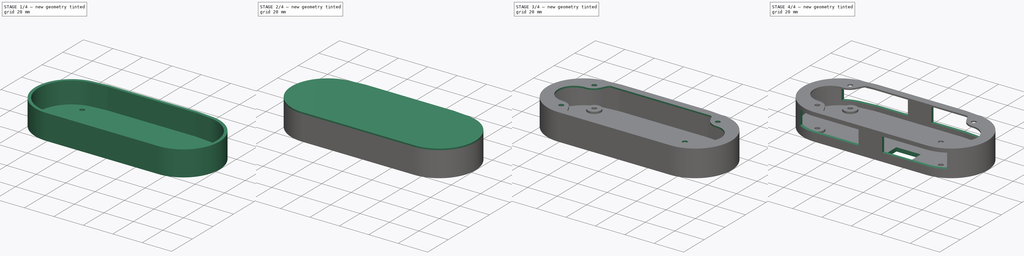
[diagram: build sequence overview — one tinted view per stage of 4, left to right]
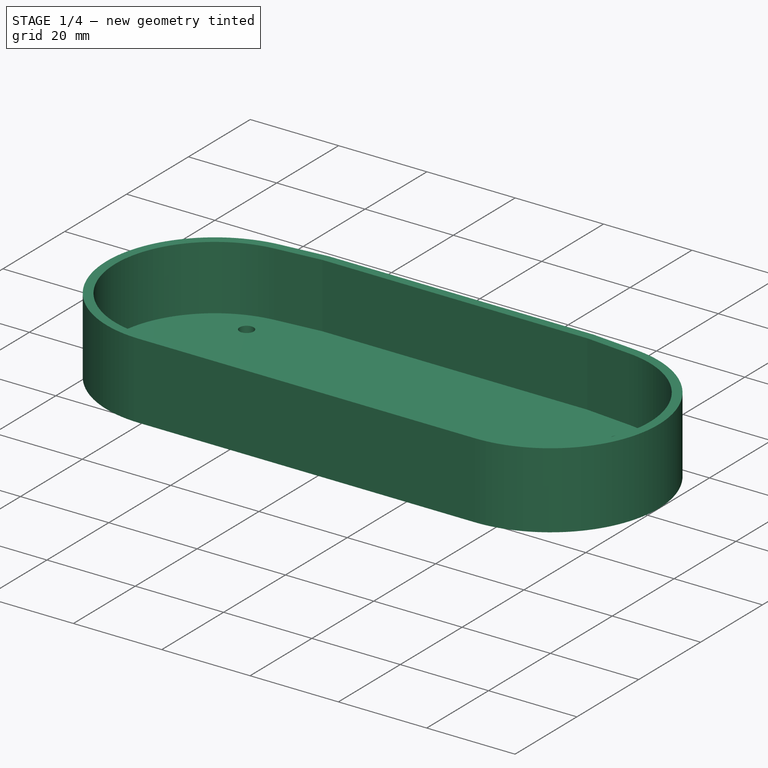
[diagram: stage 1 of 4 — iso view after this stage's code; geometry added in this stage tinted green]
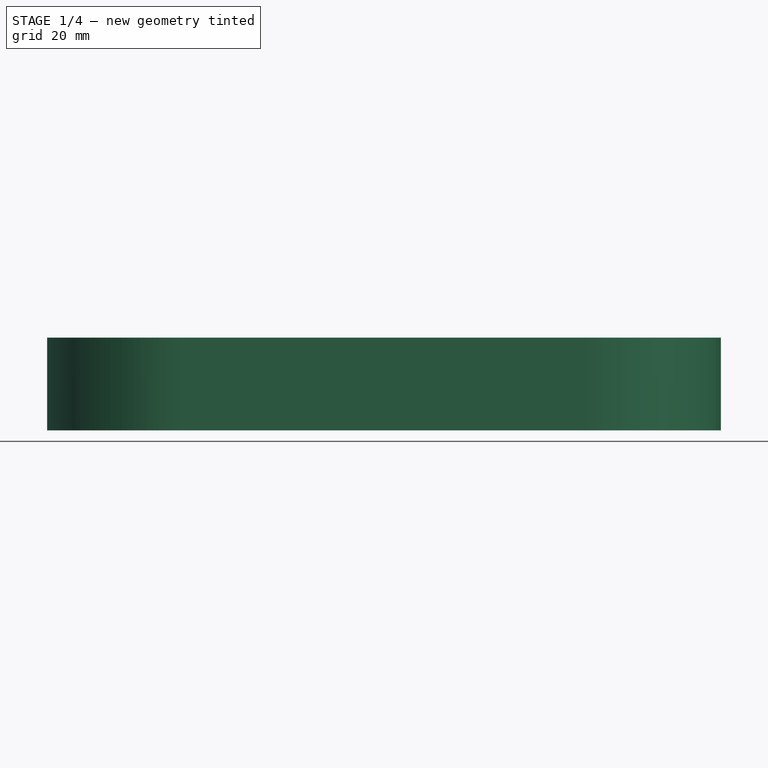
[diagram: stage 1 of 4 — front view after this stage's code; geometry added in this stage tinted green]
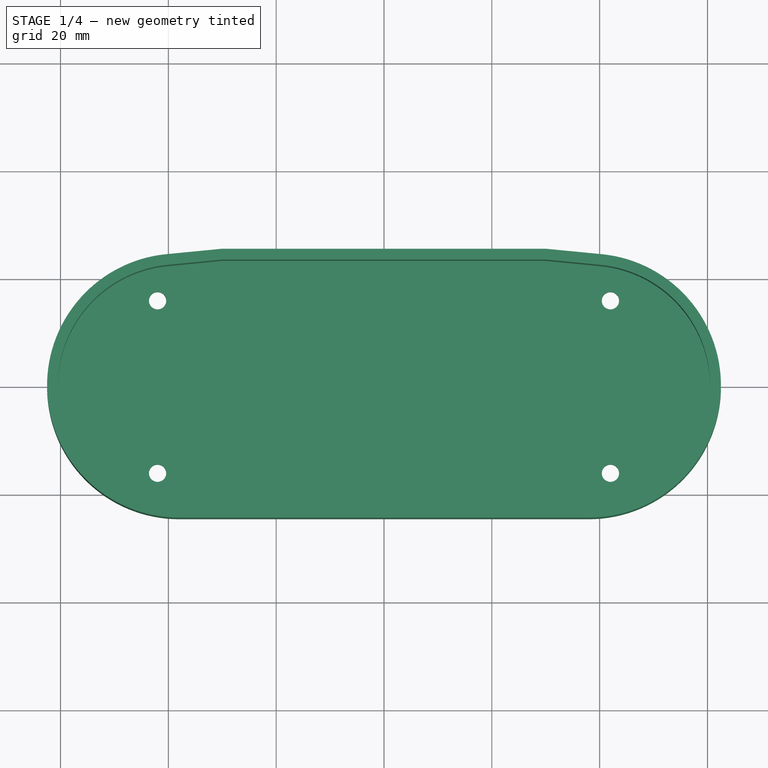
[diagram: stage 1 of 4 — top view after this stage's code; geometry added in this stage tinted green]
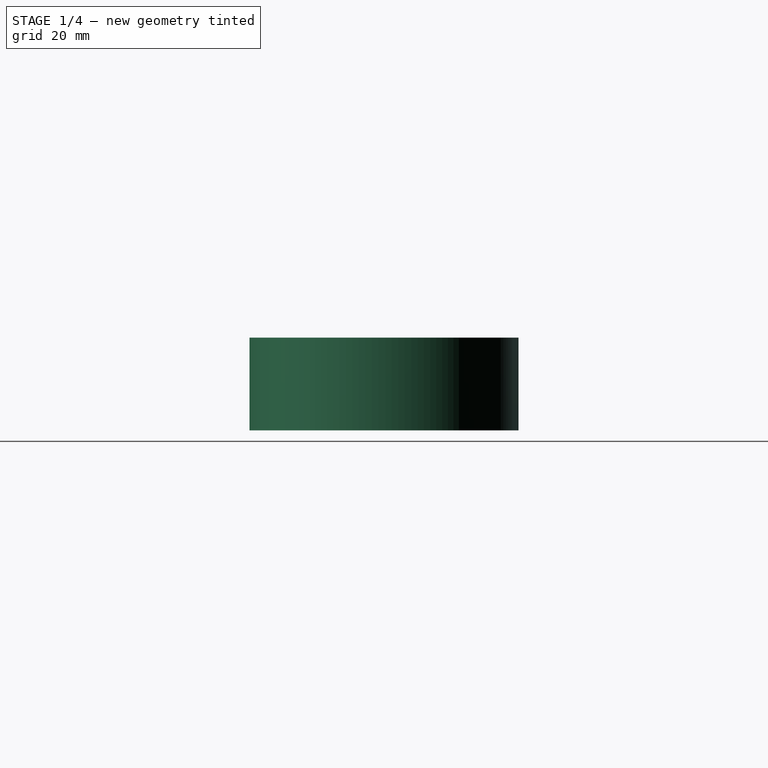
[diagram: stage 1 of 4 — right view after this stage's code; geometry added in this stage tinted green]
FCSTD DOCUMENT  (FreeCAD 1.0R38641 +468 (Git))
Label: case
License: All rights reserved
LicenseURL: https://en.wikipedia.org/wiki/All_rights_reserved
objects: Sketcher::SketchObject×9, PartDesign::Pocket×5, PartDesign::Pad×4, PartDesign::Mirrored×2, PartDesign::MultiTransform×1, PartDesign::Body×1
note: 52 computed .brp shape members not serialized (recipe doc carries the construction recipe); baked Part::Feature solids carry a one-line shape summary decoded from their .brp

FEATURE [Sketcher::SketchObject] Sketch
  ArcFitTolerance = 0
  AttachmentSupport = -> [XY_Plane]
  FullyConstrained = true
  MakeInternals = false
  MapMode = 5
  sketch-geometry (22):
    g0: LineSegment StartX=-30 StartY=23.3926 StartZ=0 EndX=30 EndY=23.3926 EndZ=0
    g1: LineSegment StartX=-38 StartY=-22.5 StartZ=0 EndX=38 EndY=-22.5 EndZ=0
    g2: ArcOfCircle CenterX=-38 CenterY=0 CenterZ=0 NormalX=0 NormalY=0 NormalZ=1 AngleXU=0 Radius=22.5 StartAngle=1.66856 EndAngle=4.71239
    g3: ArcOfCircle CenterX=38 CenterY=0 CenterZ=0 NormalX=0 NormalY=0 NormalZ=1 AngleXU=0 Radius=22.5 StartAngle=4.71239 EndAngle=7.75622
    g4: LineSegment [constr] StartX=-38 StartY=0 StartZ=0 EndX=38 EndY=0 EndZ=0
    g5: LineSegment [constr] StartX=30 StartY=22.3926 StartZ=0 EndX=30 EndY=23.3926 EndZ=0
    g6: LineSegment [constr] StartX=-30 StartY=22.3926 StartZ=0 EndX=-30 EndY=23.3926 EndZ=0
    g7: LineSegment StartX=-40.1962 StartY=22.3926 StartZ=0 EndX=-30 EndY=23.3926 EndZ=0
    g8: LineSegment StartX=30 StartY=23.3926 StartZ=0 EndX=40.1962 EndY=22.3926 EndZ=0
    g9: LineSegment [constr] StartX=-40.1962 StartY=22.3926 StartZ=0 EndX=40.1962 EndY=22.3926 EndZ=0
    g10: LineSegment [constr] StartX=-38 StartY=-22.5 StartZ=0 EndX=-38 EndY=0 EndZ=0
    g11: LineSegment [constr] StartX=38 StartY=0 StartZ=0 EndX=38 EndY=-22.5 EndZ=0
    g12: LineSegment StartX=-38 StartY=-24.5 StartZ=0 EndX=38 EndY=-24.5 EndZ=0
    g13: ArcOfCircle CenterX=38 CenterY=0 CenterZ=0 NormalX=0 NormalY=0 NormalZ=1 AngleXU=0 Radius=24.5 StartAngle=4.71239 EndAngle=7.75713
    g14: ArcOfCircle CenterX=-38 CenterY=0 CenterZ=0 NormalX=0 NormalY=0 NormalZ=1 AngleXU=0 Radius=24.5 StartAngle=1.66764 EndAngle=4.71239
    g15: LineSegment StartX=-30 StartY=25.3926 StartZ=0 EndX=30 EndY=25.3926 EndZ=0
    g16: LineSegment StartX=-40.3691 StartY=24.3852 StartZ=0 EndX=-30 EndY=25.3926 EndZ=0
    g17: LineSegment StartX=30 StartY=25.3926 StartZ=0 EndX=40.3691 EndY=24.3852 EndZ=0
    g18: LineSegment [constr] StartX=38 StartY=-22.5 StartZ=0 EndX=38 EndY=-24.5 EndZ=0
    g19: LineSegment [constr] StartX=-38 StartY=-22.5 StartZ=0 EndX=-38 EndY=-24.5 EndZ=0
    g20: LineSegment [constr] StartX=-30 StartY=23.3926 StartZ=0 EndX=-30 EndY=25.3926 EndZ=0
    g21: LineSegment [constr] StartX=30 StartY=23.3926 StartZ=0 EndX=30 EndY=25.3926 EndZ=0
  constraints (56):
    c: Horizontal(g0)
    c: Horizontal(g1)
    c: PointOnObject(g2,g-1)
    c: Coincident(g2,g1)
    c: PointOnObject(g3,g-1)
    c: Coincident(g3,g1)
    c: Coincident(g4,g2)
    c: Coincident(g4,g3)
    c: Coincident(g5,g0)
    c: Coincident(g6,g0)
    c: Vertical(g6)
    c: Vertical(g5)
    c: Tangent(g8,g3) = 1.5708
    c: Tangent(g7,g2) = 1.5708
    c: Coincident(g9,g2)
    c: Coincident(g9,g3)
    c: Horizontal(g9)
    c: DistanceX(g-1,g3) = 38
    c: DistanceX(g4,g4) = 76
    c: Coincident(g10,g1)
    c: Coincident(g10,g2)
    c: Coincident(g11,g3)
    c: Coincident(g11,g1)
    c: Vertical(g11)
    c: Vertical(g10)
    c: Radius(g3) = 22.5
    c: Coincident(g7,g0)
    c: Coincident(g8,g0)
    c: DistanceX(g-1,g5) = 30
    c: PointOnObject(g5,g9)
    c: PointOnObject(g6,g9)
    c: DistanceY(g5,g5) = 1
    c: Horizontal(g12)
    c: Coincident(g13,g3)
    c: Coincident(g13,g12)
    c: Coincident(g14,g2)
    c: Coincident(g14,g12)
    c: Horizontal(g15)
    c: Coincident(g16,g15)
    c: Coincident(g17,g15)
    c: Coincident(g18,g1)
    c: Coincident(g18,g12)
    c: Coincident(g19,g1)
    c: Coincident(g19,g12)
    c: Vertical(g19)
    c: Vertical(g18)
    c: DistanceY(g18,g18) = 2
    c: Tangent(g17,g13) = 1.5708
    c: Tangent(g16,g14) = 1.5708
    c: Coincident(g20,g0)
    c: Coincident(g20,g15)
    c: Coincident(g21,g0)
    c: Coincident(g21,g15)
    c: Vertical(g20)
    c: Vertical(g21)
    c: DistanceY(g20,g20) = 2
FEATURE [PartDesign::Pad] Pad
  Direction = (0,0,1)
  Length = 6.6
  Length2 = 8
  Profile = -> Sketch
  ReferenceAxis = -> Sketch [N_Axis]
  Suppressed = false
  Type = 4
FEATURE [Sketcher::SketchObject] Sketch001
  ArcFitTolerance = 0
  AttachmentSupport = -> [Pad]
  ExternalGeometry = -> [Pad]
  FullyConstrained = true
  MakeInternals = false
  MapMode = 5
  Placement = pos=(0,0,-8) rot=(1,0,0;3.14159rad)
  sketch-geometry (16):
    g0: LineSegment [constr] StartX=38 StartY=24.5 StartZ=0 EndX=38 EndY=0 EndZ=0
    g1: LineSegment [constr] StartX=-38 StartY=24.5 StartZ=0 EndX=-38 EndY=0 EndZ=0
    g2: ArcOfCircle CenterX=38 CenterY=0 CenterZ=0 NormalX=0 NormalY=0 NormalZ=1 AngleXU=0 Radius=24.5 StartAngle=4.80924 EndAngle=7.85398
    g3: ArcOfCircle CenterX=-38 CenterY=0 CenterZ=0 NormalX=0 NormalY=0 NormalZ=1 AngleXU=0 Radius=24.5 StartAngle=1.5708 EndAngle=4.61554
    g4: LineSegment StartX=-40.3691 StartY=-24.3852 StartZ=0 EndX=-30 EndY=-25.3926 EndZ=0
    g5: LineSegment StartX=30 StartY=-25.3926 StartZ=0 EndX=40.3691 EndY=-24.3852 EndZ=0
    g6: LineSegment StartX=-38 StartY=24.5 StartZ=0 EndX=38 EndY=24.5 EndZ=0
    g7: LineSegment StartX=-30 StartY=-25.3926 StartZ=0 EndX=30 EndY=-25.3926 EndZ=0
    g8: LineSegment [constr] StartX=-42 StartY=16 StartZ=0 EndX=42 EndY=16 EndZ=0
    g9: LineSegment [constr] StartX=42 StartY=16 StartZ=0 EndX=42 EndY=-16 EndZ=0
    g10: LineSegment [constr] StartX=42 StartY=-16 StartZ=0 EndX=-42 EndY=-16 EndZ=0
    g11: LineSegment [constr] StartX=-42 StartY=-16 StartZ=0 EndX=-42 EndY=16 EndZ=0
    g12: Circle CenterX=-42 CenterY=16 CenterZ=0 NormalX=0 NormalY=0 NormalZ=1 AngleXU=0 Radius=1.6
    g13: Circle CenterX=-42 CenterY=-16 CenterZ=0 NormalX=0 NormalY=0 NormalZ=1 AngleXU=0 Radius=1.6
    g14: Circle CenterX=42 CenterY=-16 CenterZ=0 NormalX=0 NormalY=0 NormalZ=1 AngleXU=0 Radius=1.6
    g15: Circle CenterX=42 CenterY=16 CenterZ=0 NormalX=0 NormalY=0 NormalZ=1 AngleXU=0 Radius=1.6
  constraints (38):
    c: Coincident(g0,g-3)
    c: PointOnObject(g0,g-1)
    c: Vertical(g0)
    c: Coincident(g1,g-3)
    c: PointOnObject(g1,g-1)
    c: Vertical(g1)
    c: Coincident(g2,g0)
    c: Coincident(g2,g0)
    c: Coincident(g3,g1)
    c: Coincident(g3,g1)
    c: Coincident(g4,g-4)
    c: Coincident(g5,g-4)
    c: Tangent(g5,g2) = -1.5708
    c: Tangent(g4,g3) = -1.5708
    c: Coincident(g6,g3)
    c: Coincident(g6,g2)
    c: Coincident(g7,g4)
    c: Coincident(g7,g5)
    c: Coincident(g8,g9)
    c: Coincident(g9,g10)
    c: Coincident(g10,g11)
    c: Coincident(g11,g8)
    c: Horizontal(g8)
    c: Horizontal(g10)
    c: Vertical(g9)
    c: Vertical(g11)
    c: DistanceX(g-1,g9) = 42
    c: DistanceX(g10,g-1) = 42
    c: DistanceY(g-1,g8) = 16
    c: DistanceY(g9,g-1) = 16
    c: Coincident(g12,g8)
    c: Coincident(g13,g10)
    c: Coincident(g14,g9)
    c: Coincident(g15,g8)
    c: Equal(g12,g13)
    c: Equal(g13,g14)
    c: Equal(g14,g15)
    c: Diameter(g12) = 3.2
FEATURE [PartDesign::Pad] Pad001
  BaseFeature = -> Pad
  Direction = (0,0,-1)
  Length = 2.6
  Length2 = 10
  Profile = -> Sketch001
  ReferenceAxis = -> Sketch001 [N_Axis]
  Suppressed = false
  Type = 0
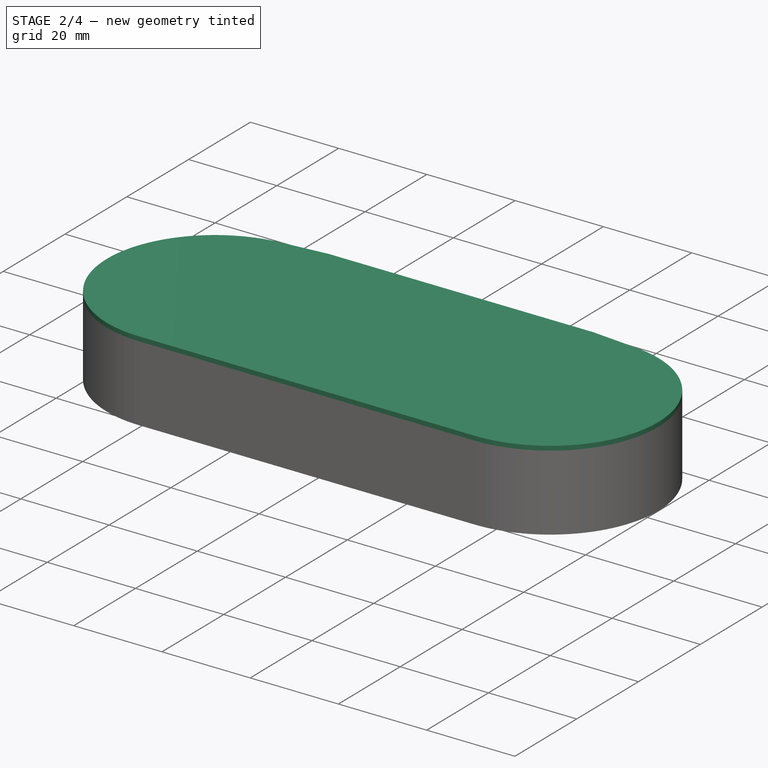
[diagram: stage 2 of 4 — iso view after this stage's code; geometry added in this stage tinted green]
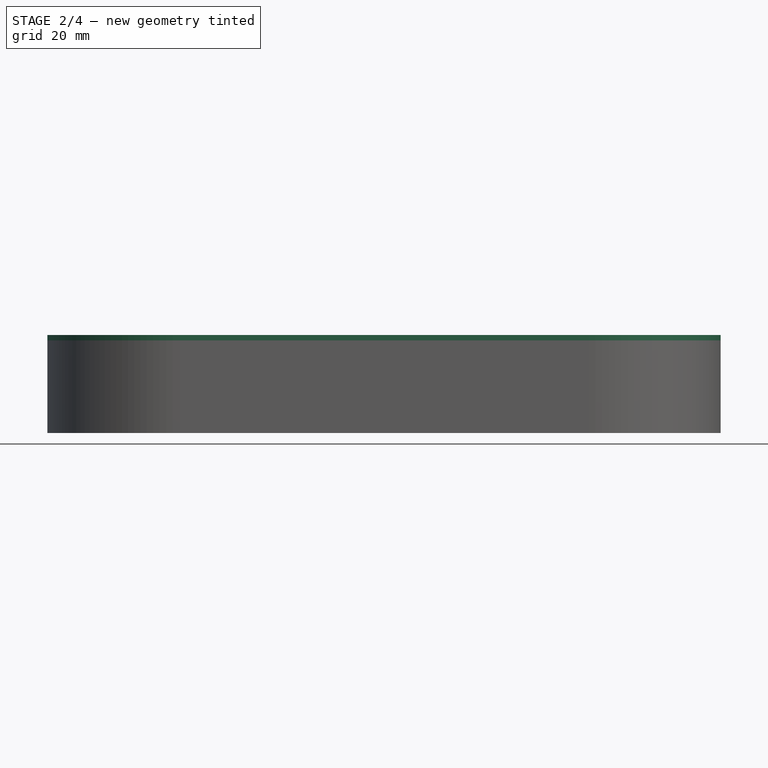
[diagram: stage 2 of 4 — front view after this stage's code; geometry added in this stage tinted green]
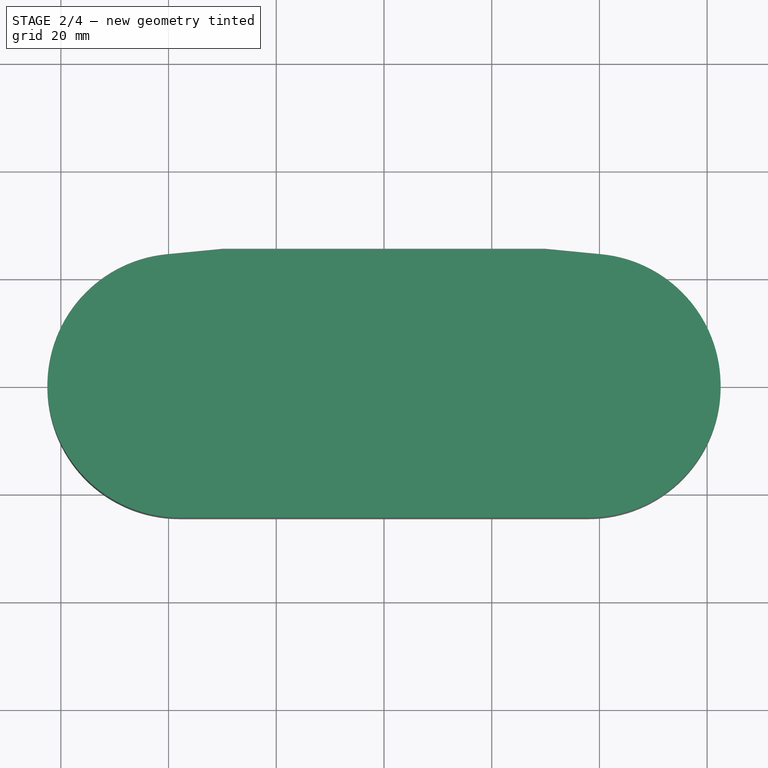
[diagram: stage 2 of 4 — top view after this stage's code; geometry added in this stage tinted green]
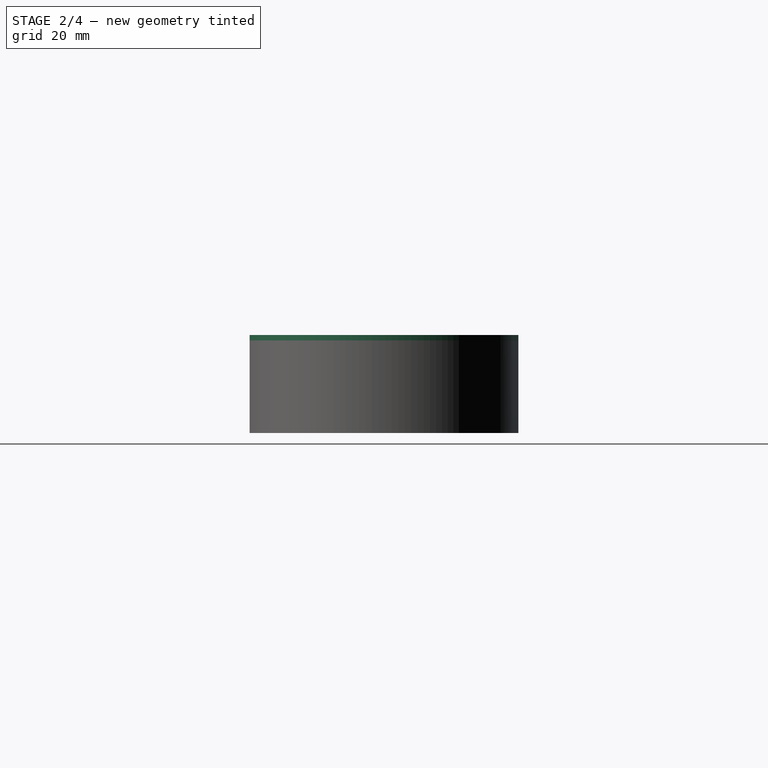
[diagram: stage 2 of 4 — right view after this stage's code; geometry added in this stage tinted green]
FEATURE [Sketcher::SketchObject] Sketch002
  ArcFitTolerance = 0
  AttachmentSupport = -> [Pad001]
  ExternalGeometry = -> [Pad001]
  FullyConstrained = true
  MakeInternals = false
  MapMode = 5
  Placement = pos=(0,0,-8) rot=(0,0,1;0rad)
  sketch-geometry (8):
    g0: Circle CenterX=-42 CenterY=16 CenterZ=0 NormalX=0 NormalY=0 NormalZ=1 AngleXU=0 Radius=4.5
    g1: Circle CenterX=-42 CenterY=-16 CenterZ=0 NormalX=0 NormalY=0 NormalZ=1 AngleXU=0 Radius=4.5
    g2: Circle CenterX=42 CenterY=16 CenterZ=0 NormalX=0 NormalY=0 NormalZ=1 AngleXU=0 Radius=4.5
    g3: Circle CenterX=42 CenterY=-16 CenterZ=0 NormalX=0 NormalY=0 NormalZ=1 AngleXU=0 Radius=4.5
    g4: Circle CenterX=-42 CenterY=16 CenterZ=0 NormalX=0 NormalY=0 NormalZ=1 AngleXU=0 Radius=1.6
    g5: Circle CenterX=-42 CenterY=-16 CenterZ=0 NormalX=0 NormalY=0 NormalZ=1 AngleXU=0 Radius=1.6
    g6: Circle CenterX=42 CenterY=16 CenterZ=0 NormalX=0 NormalY=0 NormalZ=1 AngleXU=0 Radius=1.6
    g7: Circle CenterX=42 CenterY=-16 CenterZ=0 NormalX=0 NormalY=0 NormalZ=1 AngleXU=0 Radius=1.6
  constraints (16):
    c: Coincident(g0,g-3)
    c: Coincident(g1,g-4)
    c: Coincident(g2,g-5)
    c: Coincident(g3,g-6)
    c: Diameter(g0) = 9
    c: Equal(g0,g2)
    c: Equal(g2,g3)
    c: Equal(g3,g1)
    c: Coincident(g4,g0)
    c: Coincident(g5,g1)
    c: Coincident(g6,g2)
    c: Coincident(g7,g3)
    c: Diameter(g4) = 3.2
    c: Equal(g4,g5)
    c: Equal(g5,g6)
    c: Equal(g6,g7)
FEATURE [PartDesign::Pad] Pad002
  BaseFeature = -> Pad001
  Direction = (0,0,1)
  Length = 1.4
  Length2 = 10
  Profile = -> Sketch002
  ReferenceAxis = -> Sketch002 [N_Axis]
  Suppressed = false
  Type = 0
FEATURE [Sketcher::SketchObject] Sketch003
  ArcFitTolerance = 0
  AttachmentSupport = -> [Pad002]
  ExternalGeometry = -> [Pad002]
  FullyConstrained = true
  MakeInternals = false
  MapMode = 5
  Placement = pos=(0,0,-10.6) rot=(1,0,0;3.14159rad)
  sketch-geometry (4):
    g0: Circle CenterX=-42 CenterY=16 CenterZ=0 NormalX=0 NormalY=0 NormalZ=1 AngleXU=0 Radius=3.5
    g1: Circle CenterX=-42 CenterY=-16 CenterZ=0 NormalX=0 NormalY=0 NormalZ=1 AngleXU=0 Radius=3.5
    g2: Circle CenterX=42 CenterY=-16 CenterZ=0 NormalX=0 NormalY=0 NormalZ=1 AngleXU=0 Radius=3.5
    g3: Circle CenterX=42 CenterY=16 CenterZ=0 NormalX=0 NormalY=0 NormalZ=1 AngleXU=0 Radius=3.5
  constraints (8):
    c: Coincident(g0,g-3)
    c: Coincident(g1,g-6)
    c: Coincident(g2,g-5)
    c: Coincident(g3,g-4)
    c: Diameter(g0) = 7
    c: Equal(g0,g1)
    c: Equal(g1,g3)
    c: Equal(g3,g2)
FEATURE [PartDesign::Pocket] Pocket
  BaseFeature = -> Pad002
  Direction = (0,0,1)
  Length = 3
  Length2 = 5
  Profile = -> Sketch003
  ReferenceAxis = -> Sketch003 [N_Axis]
  Suppressed = false
  Type = 0
FEATURE [Sketcher::SketchObject] Sketch004
  ArcFitTolerance = 0
  AttachmentSupport = -> [Pocket]
  ExternalGeometry = -> [Pocket]
  FullyConstrained = true
  MakeInternals = false
  MapMode = 5
  Placement = pos=(0,0,6.6) rot=(0,0,1;0rad)
  sketch-geometry (8):
    g0: LineSegment [constr] StartX=-38 StartY=-24.5 StartZ=0 EndX=-38 EndY=0 EndZ=0
    g1: LineSegment [constr] StartX=38 StartY=-24.5 StartZ=0 EndX=38 EndY=0 EndZ=0
    g2: LineSegment StartX=-38 StartY=-24.5 StartZ=0 EndX=38 EndY=-24.5 EndZ=0
    g3: LineSegment StartX=-30 StartY=25.3926 StartZ=0 EndX=30 EndY=25.3926 EndZ=0
    g4: ArcOfCircle CenterX=-38 CenterY=0 CenterZ=0 NormalX=0 NormalY=0 NormalZ=1 AngleXU=0 Radius=24.5 StartAngle=1.66764 EndAngle=4.71239
    g5: ArcOfCircle CenterX=38 CenterY=0 CenterZ=0 NormalX=0 NormalY=0 NormalZ=1 AngleXU=0 Radius=24.5 StartAngle=4.71239 EndAngle=7.75713
    g6: LineSegment StartX=-30 StartY=25.3926 StartZ=0 EndX=-40.3691 EndY=24.3852 EndZ=0
    g7: LineSegment StartX=30 StartY=25.3926 StartZ=0 EndX=40.3691 EndY=24.3852 EndZ=0
  constraints (18):
    c: Coincident(g0,g-4)
    c: PointOnObject(g0,g-1)
    c: Vertical(g0)
    c: Coincident(g1,g-4)
    c: PointOnObject(g1,g-1)
    c: Vertical(g1)
    c: Coincident(g2,g0)
    c: Coincident(g2,g1)
    c: Coincident(g3,g-3)
    c: Coincident(g3,g-3)
    c: Coincident(g4,g0)
    c: Coincident(g4,g2)
    c: Coincident(g5,g1)
    c: Coincident(g5,g2)
    c: Coincident(g6,g3)
    c: Coincident(g7,g3)
    c: Tangent(g7,g5) = 1.5708
    c: Tangent(g6,g4) = -1.5708
FEATURE [PartDesign::Pad] Pad003
  BaseFeature = -> Pocket
  Direction = (0,0,1)
  Length = 1
  Length2 = 10
  Profile = -> Sketch004
  ReferenceAxis = -> Sketch004 [N_Axis]
  Suppressed = false
  Type = 0
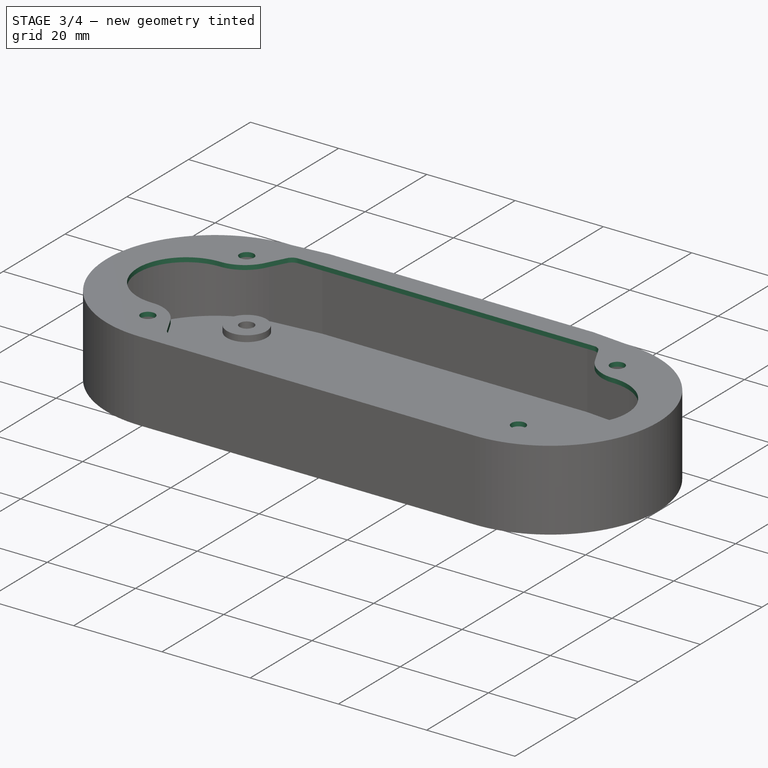
[diagram: stage 3 of 4 — iso view after this stage's code; geometry added in this stage tinted green]
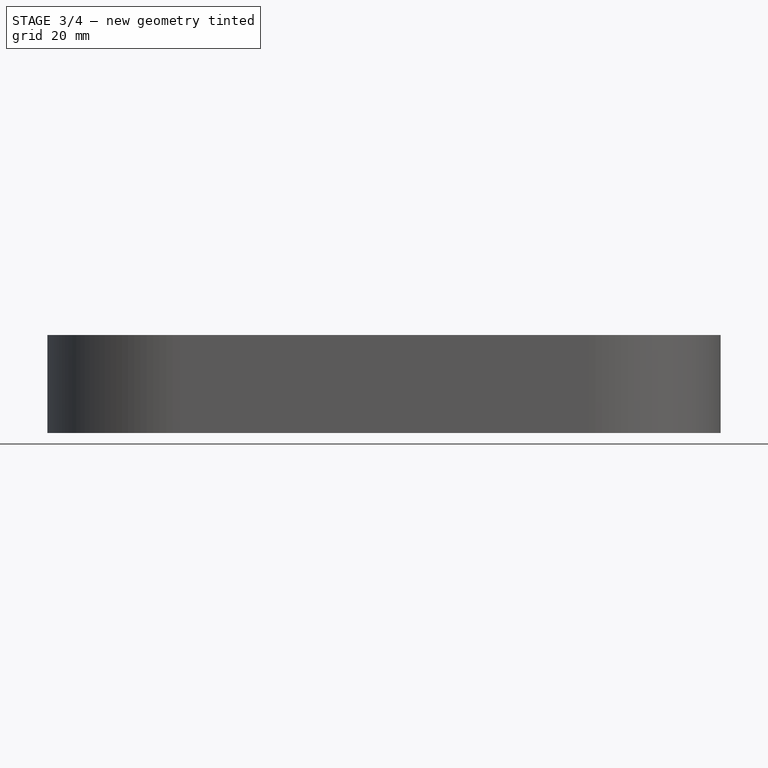
[diagram: stage 3 of 4 — front view after this stage's code; geometry added in this stage tinted green]
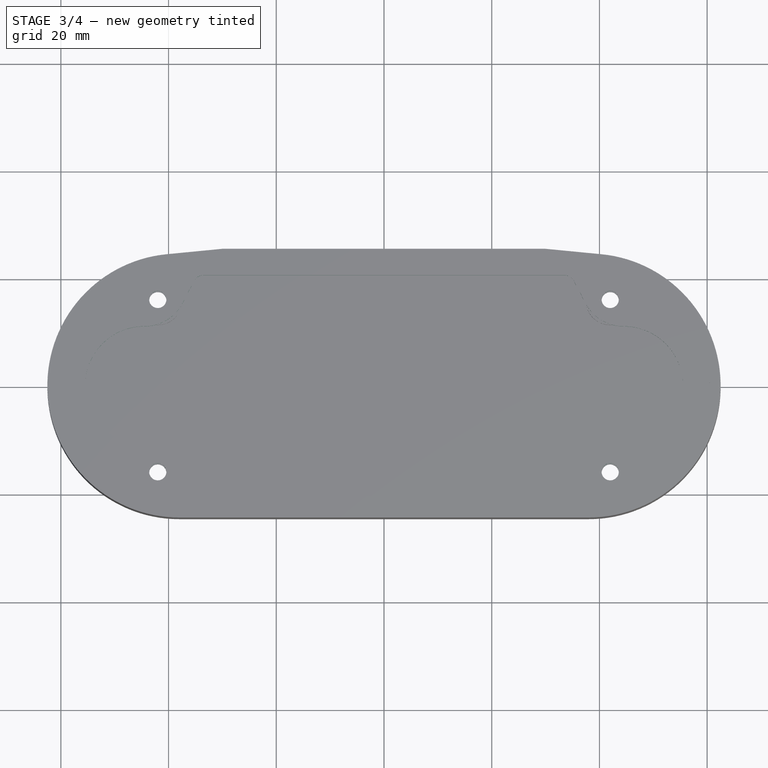
[diagram: stage 3 of 4 — top view after this stage's code; geometry added in this stage tinted green]
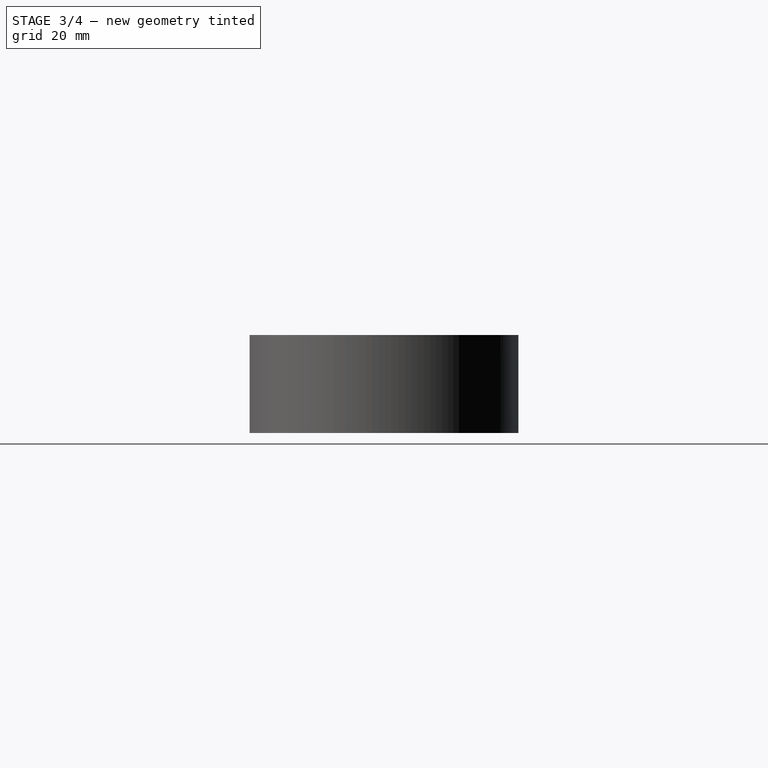
[diagram: stage 3 of 4 — right view after this stage's code; geometry added in this stage tinted green]
FEATURE [Sketcher::SketchObject] Sketch005
  ArcFitTolerance = 0
  AttachmentSupport = -> [Pad003]
  FullyConstrained = true
  MakeInternals = false
  MapMode = 5
  Placement = pos=(0,0,7.6) rot=(0,0,1;0rad)
  sketch-geometry (10):
    g0: ArcOfCircle CenterX=-44.5 CenterY=0 CenterZ=0 NormalX=0 NormalY=0 NormalZ=1 AngleXU=0 Radius=11 StartAngle=1.5708 EndAngle=3.14159
    g1: LineSegment [constr] StartX=-44.5 StartY=11 StartZ=0 EndX=-44.5 EndY=0 EndZ=0
    g2: LineSegment StartX=-33.5 StartY=20.5 StartZ=0 EndX=0 EndY=20.5 EndZ=0
    g3: ArcOfCircle CenterX=-33.5 CenterY=18.5 CenterZ=0 NormalX=0 NormalY=0 NormalZ=1 AngleXU=0 Radius=2 StartAngle=1.5708 EndAngle=2.66422
    g4: LineSegment [constr] StartX=-33.5 StartY=20.5 StartZ=0 EndX=-33.5 EndY=18.5 EndZ=0
    g5: ArcOfCircle CenterX=-44.5 CenterY=19 CenterZ=0 NormalX=0 NormalY=0 NormalZ=1 AngleXU=0 Radius=8 StartAngle=4.71239 EndAngle=5.80582
    g6: LineSegment StartX=-37.3943 StartY=15.3245 StartZ=0 EndX=-35.2764 EndY=19.4189 EndZ=0
    g7: LineSegment [constr] StartX=-44.5 StartY=19 StartZ=0 EndX=-44.5 EndY=11 EndZ=0
    g8: LineSegment StartX=-55.5 StartY=1.3e-15 StartZ=0 EndX=0 EndY=0 EndZ=0
    g9: LineSegment StartX=0 StartY=20.5 StartZ=0 EndX=0 EndY=0 EndZ=0
  constraints (27):
    c: PointOnObject(g0,g-1)
    c: PointOnObject(g0,g-1)
    c: Coincident(g1,g0)
    c: Coincident(g1,g0)
    c: Vertical(g1)
    c: DistanceX(g0,g-1) = 44.5
    c: Radius(g0) = 11
    c: Horizontal(g2)
    c: DistanceX(g2,g-1) = 33.5
    c: Coincident(g3,g2)
    c: Coincident(g4,g2)
    c: Coincident(g4,g3)
    c: Vertical(g4)
    c: Coincident(g5,g0)
    c: Coincident(g7,g5)
    c: Coincident(g7,g0)
    c: Vertical(g7)
    c: Tangent(g6,g5) = -1.5708
    c: Tangent(g6,g3) = 1.5708
    c: DistanceY(g-1,g2) = 20.5
    c: DistanceY(g7,g7) = 8
    c: DistanceY(g4,g4) = 2
    c: PointOnObject(g2,g-2)
    c: Coincident(g8,g0)
    c: Coincident(g8,g-1)
    c: Coincident(g9,g2)
    c: Coincident(g9,g8)
FEATURE [PartDesign::Pocket] Pocket001
  BaseFeature = -> Pad003
  Direction = (0,0,-1)
  Length = 0
  Length2 = 5
  Profile = -> Sketch005
  ReferenceAxis = -> Sketch005 [N_Axis]
  Suppressed = false
  Type = 3
  UpToFace = -> Pad003 [Face48]
FEATURE [PartDesign::Mirrored] Mirrored
  MirrorPlane = -> YZ_Plane
  Suppressed = false
  TransformMode = 0
FEATURE [PartDesign::Mirrored] Mirrored001
  MirrorPlane = -> XZ_Plane
  Suppressed = false
  TransformMode = 0
FEATURE [PartDesign::MultiTransform] MultiTransform
  BaseFeature = -> Pocket001
  Originals = -> [Pocket001]
  Suppressed = false
  TransformMode = 0
  Transformations = -> [Mirrored,Mirrored001]
FEATURE [Sketcher::SketchObject] Sketch006
  ArcFitTolerance = 0
  AttachmentSupport = -> [MultiTransform]
  FullyConstrained = true
  MakeInternals = false
  MapMode = 5
  Placement = pos=(0,0,7.6) rot=(0,0,1;0rad)
  sketch-geometry (8):
    g0: LineSegment [constr] StartX=-42 StartY=16 StartZ=0 EndX=42 EndY=16 EndZ=0
    g1: LineSegment [constr] StartX=42 StartY=16 StartZ=0 EndX=42 EndY=-16 EndZ=0
    g2: LineSegment [constr] StartX=42 StartY=-16 StartZ=0 EndX=-42 EndY=-16 EndZ=0
    g3: LineSegment [constr] StartX=-42 StartY=-16 StartZ=0 EndX=-42 EndY=16 EndZ=0
    g4: Circle CenterX=-42 CenterY=16 CenterZ=0 NormalX=0 NormalY=0 NormalZ=1 AngleXU=0 Radius=1.6
    g5: Circle CenterX=-42 CenterY=-16 CenterZ=0 NormalX=0 NormalY=0 NormalZ=1 AngleXU=0 Radius=1.6
    g6: Circle CenterX=42 CenterY=-16 CenterZ=0 NormalX=0 NormalY=0 NormalZ=1 AngleXU=0 Radius=1.6
    g7: Circle CenterX=42 CenterY=16 CenterZ=0 NormalX=0 NormalY=0 NormalZ=1 AngleXU=0 Radius=1.6
  constraints (20):
    c: Coincident(g0,g1)
    c: Coincident(g1,g2)
    c: Coincident(g2,g3)
    c: Coincident(g3,g0)
    c: Horizontal(g0)
    c: Horizontal(g2)
    c: Vertical(g1)
    c: Vertical(g3)
    c: DistanceX(g0,g-1) = 42
    c: DistanceX(g-1,g0) = 42
    c: DistanceY(g-1,g0) = 16
    c: DistanceY(g1,g-1) = 16
    c: Coincident(g4,g0)
    c: Coincident(g5,g2)
    c: Coincident(g6,g1)
    c: Coincident(g7,g0)
    c: Equal(g4,g5)
    c: Equal(g5,g6)
    c: Equal(g6,g7)
    c: Diameter(g4) = 3.2
FEATURE [PartDesign::Pocket] Pocket002
  BaseFeature = -> MultiTransform
  Direction = (0,0,-1)
  Length = 0
  Length2 = 5
  Profile = -> Sketch006
  ReferenceAxis = -> Sketch006 [N_Axis]
  Suppressed = false
  Type = 3
  UpToFace = -> MultiTransform [Face49]
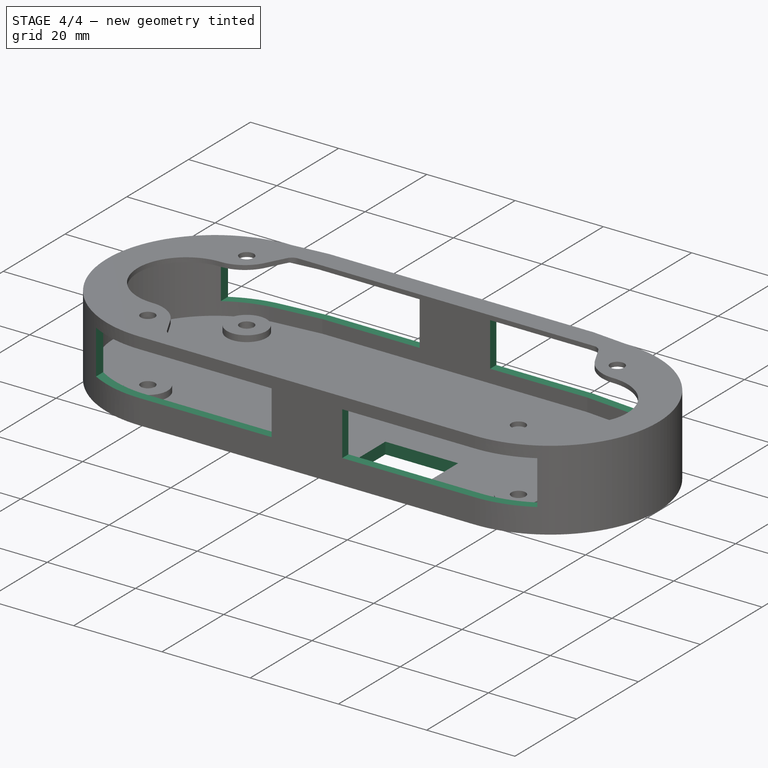
[diagram: stage 4 of 4 — iso view after this stage's code; geometry added in this stage tinted green]
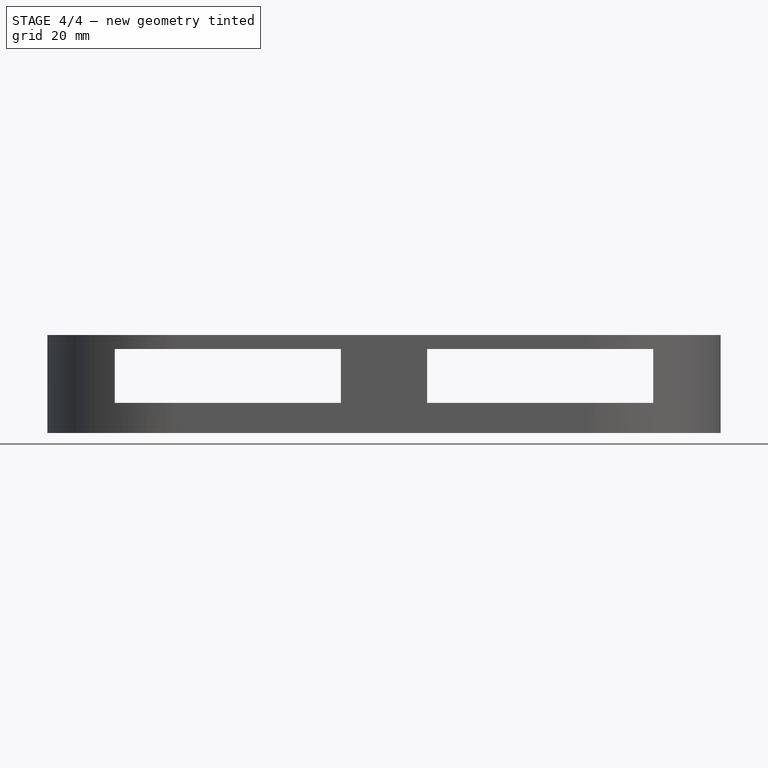
[diagram: stage 4 of 4 — front view after this stage's code; geometry added in this stage tinted green]
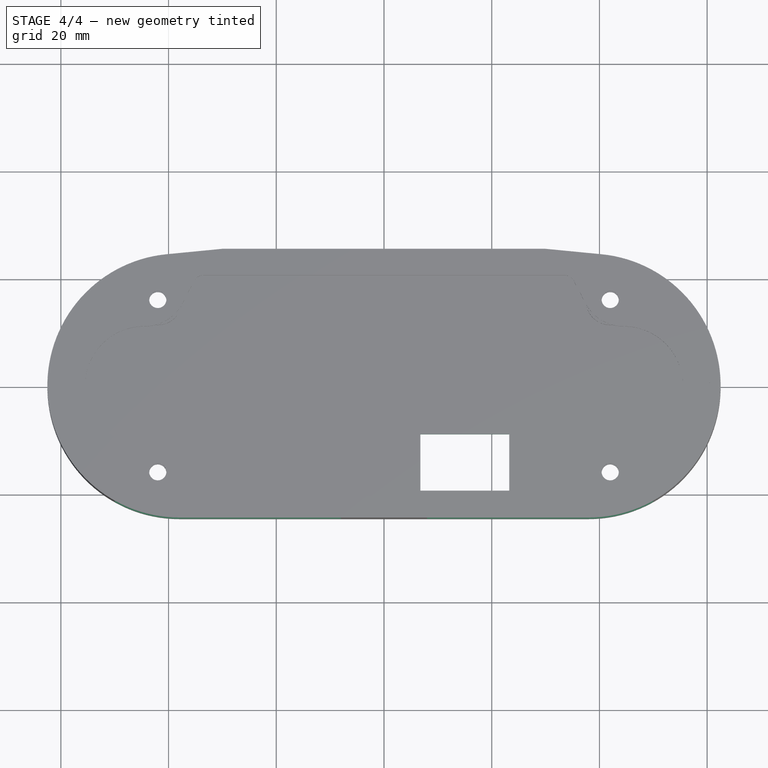
[diagram: stage 4 of 4 — top view after this stage's code; geometry added in this stage tinted green]
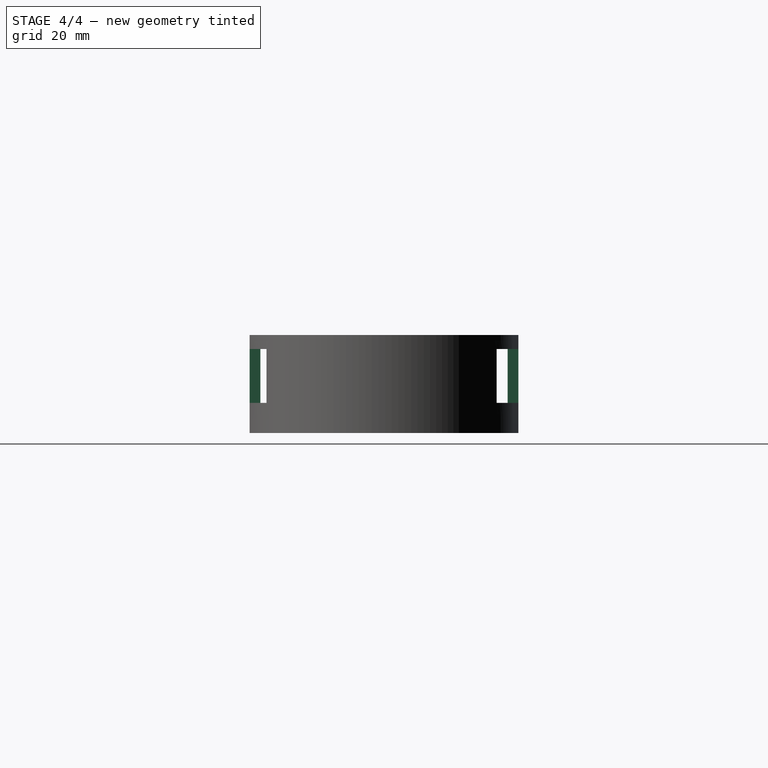
[diagram: stage 4 of 4 — right view after this stage's code; geometry added in this stage tinted green]
FEATURE [Sketcher::SketchObject] Sketch007
  ArcFitTolerance = 0
  AttachmentSupport = -> [Pocket002]
  FullyConstrained = true
  MakeInternals = false
  MapMode = 5
  Placement = pos=(0,25.3926,0) rot=(0,0.707107,0.707107;3.14159rad)
  sketch-geometry (10):
    g0: LineSegment StartX=-50 StartY=5 StartZ=0 EndX=-8 EndY=5 EndZ=0
    g1: LineSegment StartX=-8 StartY=5 StartZ=0 EndX=-8 EndY=-5 EndZ=0
    g2: LineSegment StartX=-8 StartY=-5 StartZ=0 EndX=-50 EndY=-5 EndZ=0
    g3: LineSegment StartX=-50 StartY=-5 StartZ=0 EndX=-50 EndY=5 EndZ=0
    g4: LineSegment StartX=8 StartY=5 StartZ=0 EndX=50 EndY=5 EndZ=0
    g5: LineSegment StartX=50 StartY=5 StartZ=0 EndX=50 EndY=-5 EndZ=0
    g6: LineSegment StartX=50 StartY=-5 StartZ=0 EndX=8 EndY=-5 EndZ=0
    g7: LineSegment StartX=8 StartY=-5 StartZ=0 EndX=8 EndY=5 EndZ=0
    g8: LineSegment [constr] StartX=-8 StartY=5 StartZ=0 EndX=8 EndY=5 EndZ=0
    g9: LineSegment [constr] StartX=-8 StartY=-5 StartZ=0 EndX=8 EndY=-5 EndZ=0
  constraints (28):
    c: Coincident(g0,g1)
    c: Coincident(g1,g2)
    c: Coincident(g2,g3)
    c: Coincident(g3,g0)
    c: Horizontal(g0)
    c: Horizontal(g2)
    c: Vertical(g1)
    c: Vertical(g3)
    c: Coincident(g4,g5)
    c: Coincident(g5,g6)
    c: Coincident(g6,g7)
    c: Coincident(g7,g4)
    c: Horizontal(g4)
    c: Horizontal(g6)
    c: Vertical(g5)
    c: Vertical(g7)
    c: Coincident(g8,g0)
    c: Horizontal(g8)
    c: Coincident(g9,g1)
    c: Coincident(g9,g6)
    c: Coincident(g4,g8)
    c: Horizontal(g9)
    c: DistanceY(g6,g-1) = 5
    c: DistanceY(g-1,g4) = 5
    c: Equal(g0,g4)
    c: DistanceX(g0,g-1) = 50
    c: DistanceX(g0,g-1) = 8
    c: DistanceX(g0,g4) = 16
FEATURE [PartDesign::Pocket] Pocket003
  BaseFeature = -> Pocket002
  Direction = (0,-1,2e-16)
  Length = 0
  Length2 = 5
  Profile = -> Sketch007
  ReferenceAxis = -> Sketch007 [N_Axis]
  Suppressed = false
  Type = 3
  UpToFace = -> Pocket002 [Face6]
FEATURE [Sketcher::SketchObject] Sketch008
  ArcFitTolerance = 0
  AttachmentSupport = -> [Pocket003]
  FullyConstrained = true
  MakeInternals = false
  MapMode = 5
  Placement = pos=(0,0,-8) rot=(0,0,1;0rad)
  sketch-geometry (6):
    g0: LineSegment StartX=6.75 StartY=-8.75 StartZ=0 EndX=23.25 EndY=-8.75 EndZ=0
    g1: LineSegment StartX=23.25 StartY=-8.75 StartZ=0 EndX=23.25 EndY=-19.25 EndZ=0
    g2: LineSegment StartX=23.25 StartY=-19.25 StartZ=0 EndX=6.75 EndY=-19.25 EndZ=0
    g3: LineSegment StartX=6.75 StartY=-19.25 StartZ=0 EndX=6.75 EndY=-8.75 EndZ=0
    g4: GeomPoint [constr] X=15 Y=-14 Z=0
    g5: LineSegment [constr] StartX=6.75 StartY=-8.75 StartZ=0 EndX=23.25 EndY=-19.25 EndZ=0
  constraints (16):
    c: Coincident(g0,g1)
    c: Coincident(g1,g2)
    c: Coincident(g2,g3)
    c: Coincident(g3,g0)
    c: Horizontal(g0)
    c: Horizontal(g2)
    c: Vertical(g1)
    c: Vertical(g3)
    c: DistanceX(g0,g0) = 16.5
    c: DistanceY(g3,g3) = 10.5
    c: Coincident(g5,g0)
    c: Coincident(g5,g1)
    c: PointOnObject(g4,g5)
    c: DistanceY(g4,g0) = 5.25
    c: DistanceY(g4,g-1) = 14
    c: DistanceX(g-1,g4) = 15
FEATURE [PartDesign::Pocket] Pocket004
  BaseFeature = -> Pocket003
  Direction = (0,0,-1)
  Length = 0
  Length2 = 5
  Profile = -> Sketch008
  ReferenceAxis = -> Sketch008 [N_Axis]
  Suppressed = false
  Type = 3
  UpToFace = -> Pocket003 [Face8]
FEATURE [PartDesign::Body] Body
  AllowCompound = false
  Group = -> [Sketch,Pad,Sketch001,Pad001,Sketch002,Pad002,Sketch003,Pocket,Sketch004,Pad003,Sketch005,Pocket001,MultiTransform,Mirrored,Mirrored001,Sketch006,Pocket002,Sketch007,Pocket003,Sketch008,Pocket004]
  Origin = -> Origin
  Tip = -> Pocket004
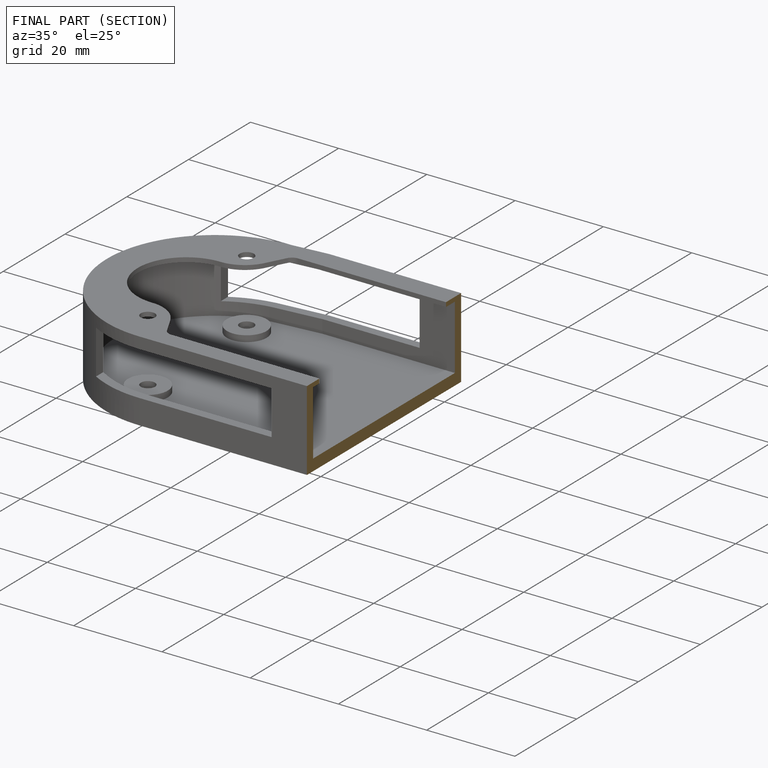
[diagram: finished part — half-section view (interior)]
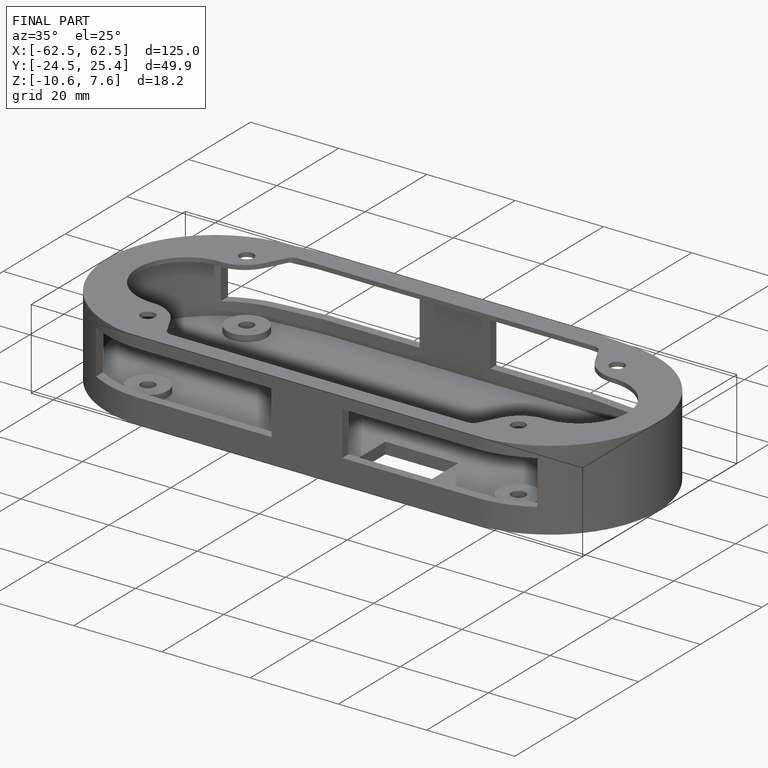
[diagram: finished part — iso view with bounding-box wireframe]
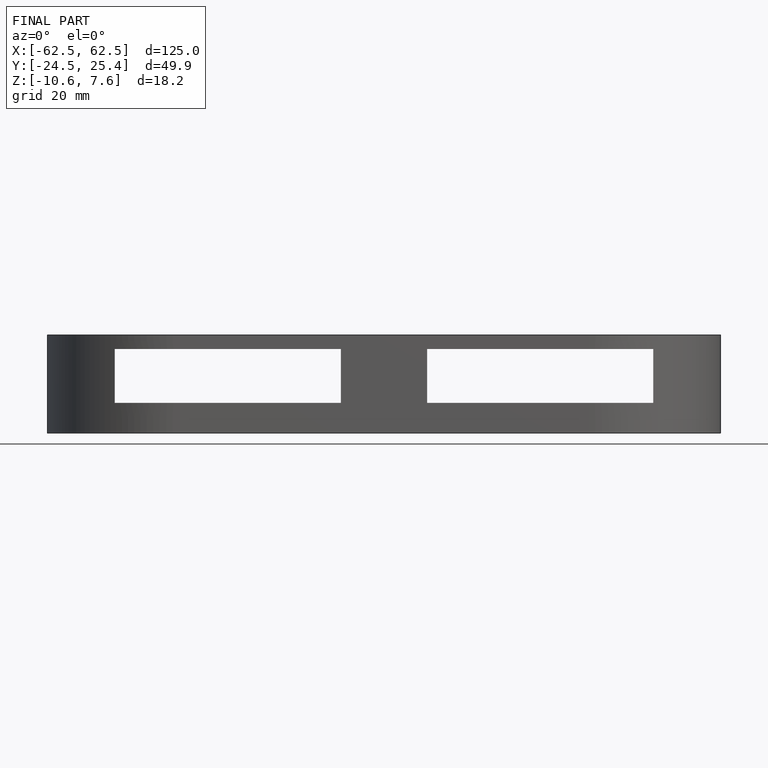
[diagram: finished part — front view with bounding-box wireframe]
